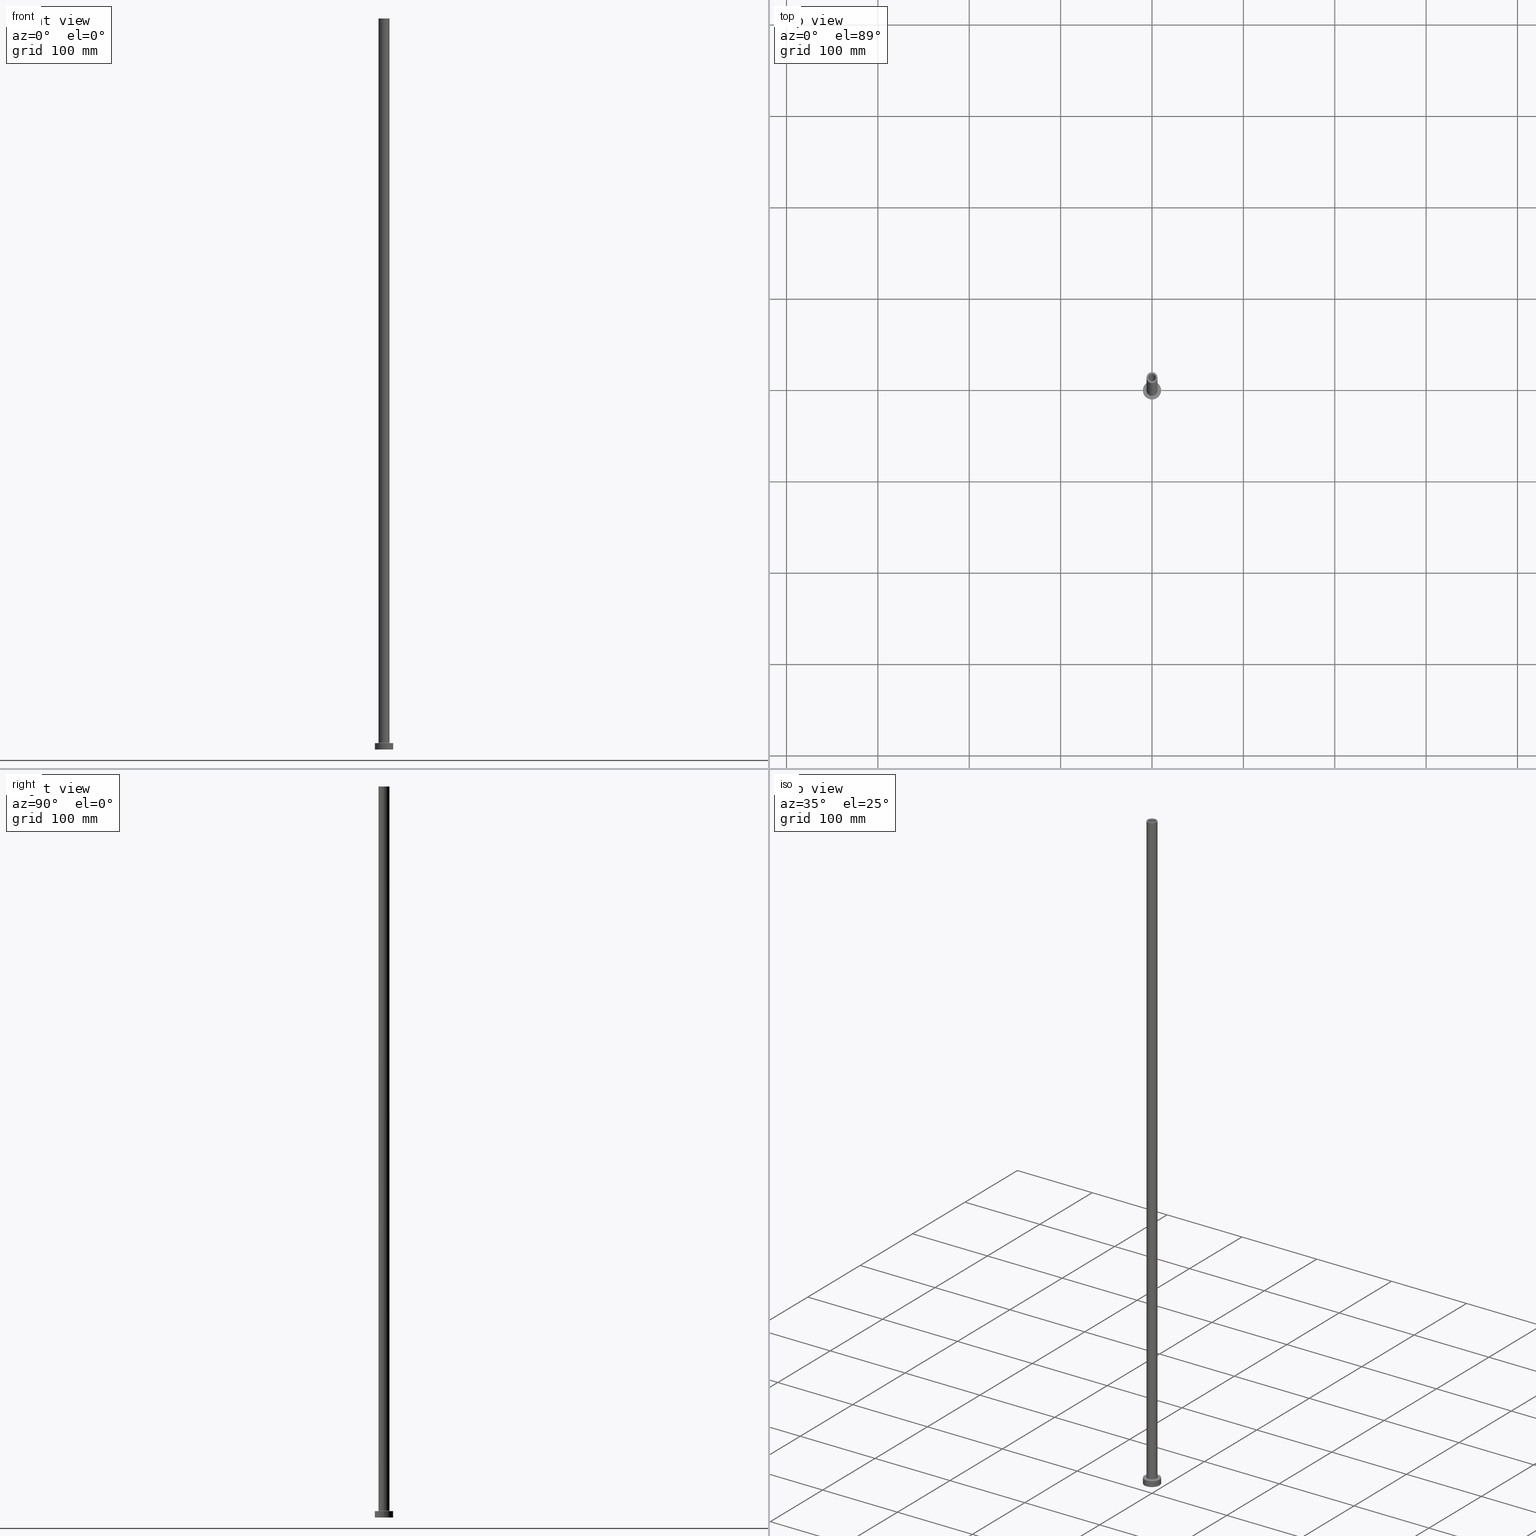
[diagram: canonical four-view strip — front | top / right | iso, engineering-drawing reading convention]
A machine part, canonical four-view strip (front | top / right | iso — engineering-drawing reading convention). The complete STEP part file that produces these views, byte-faithful:
ISO-10303-21;
HEADER;
FILE_DESCRIPTION (( 'STEP AP203' ),
    '1' );
FILE_NAME ('8b2d.STEP',
    '2023-02-13T07:37:52',
    ( '' ),
    ( '' ),
    'SwSTEP 2.0',
    'SolidWorks 2019',
    '' );
FILE_SCHEMA (( 'CONFIG_CONTROL_DESIGN' ));
ENDSEC;

DATA;
#1 = APPROVAL_PERSON_ORGANIZATION ( #98, #102, #64 ) ;
#2 = DIRECTION ( 'NONE',  ( 0.000000000000000000, 0.000000000000000000, 1.000000000000000000 ) ) ;
#3 = DIRECTION ( 'NONE',  ( 1.000000000000000000, 0.000000000000000000, 0.000000000000000000 ) ) ;
#4 = EDGE_CURVE ( 'NONE', #404, #327, #367, .T. ) ;
#5 = AXIS2_PLACEMENT_3D ( 'NONE', #224, #80, #363 ) ;
#6 = PERSON_AND_ORGANIZATION ( #136, #69 ) ;
#7 = EDGE_LOOP ( 'NONE', ( #221, #330, #400, #259 ) ) ;
#8 = CARTESIAN_POINT ( 'NONE',  ( 0.000000000000000000, 0.000000000000000000, 0.000000000000000000 ) ) ;
#9 = EDGE_CURVE ( 'NONE', #327, #11, #153, .T. ) ;
#10 = DIRECTION ( 'NONE',  ( -0.000000000000000000, -0.000000000000000000, -1.000000000000000000 ) ) ;
#11 = VERTEX_POINT ( 'NONE', #268 ) ;
#12 = VECTOR ( 'NONE', #272, 1000.000000000000000 ) ;
#13 = CYLINDRICAL_SURFACE ( 'NONE', #311, 6.000000000000000888 ) ;
#14 = ORIENTED_EDGE ( 'NONE', *, *, #377, .T. ) ;
#15 = EDGE_CURVE ( 'NONE', #359, #256, #348, .T. ) ;
#16 = EDGE_LOOP ( 'NONE', ( #324, #416 ) ) ;
#17 = DIRECTION ( 'NONE',  ( 1.000000000000000000, 0.000000000000000000, 0.000000000000000000 ) ) ;
#18 = APPROVAL_ROLE ( '' ) ;
#19 = DIRECTION ( 'NONE',  ( 1.000000000000000000, 0.000000000000000000, 0.000000000000000000 ) ) ;
#20 = CYLINDRICAL_SURFACE ( 'NONE', #50, 4.099999999999999645 ) ;
#21 = DIRECTION ( 'NONE',  ( 0.000000000000000000, 0.000000000000000000, 1.000000000000000000 ) ) ;
#22 = CARTESIAN_POINT ( 'NONE',  ( 0.000000000000000000, 0.000000000000000000, 800.0000000000000000 ) ) ;
#23 = TOROIDAL_SURFACE ( 'NONE', #138, 6.700000000000001066, 0.6999999999999999556 ) ;
#24 = DIRECTION ( 'NONE',  ( 0.000000000000000000, 0.000000000000000000, -1.000000000000000000 ) ) ;
#25 = CALENDAR_DATE ( 2023, 13, 2 ) ;
#26 = DATE_AND_TIME ( #25, #253 ) ;
#27 = AXIS2_PLACEMENT_3D ( 'NONE', #366, #160, #17 ) ;
#28 = EDGE_LOOP ( 'NONE', ( #35, #121, #334, #273 ) ) ;
#29 = DATE_TIME_ROLE ( 'creation_date' ) ;
#30 = CIRCLE ( 'NONE', #288, 4.250000000000000000 ) ;
#31 = AXIS2_PLACEMENT_3D ( 'NONE', #356, #177, #3 ) ;
#32 = DIRECTION ( 'NONE',  ( -0.000000000000000000, -0.000000000000000000, -1.000000000000000000 ) ) ;
#33 = ADVANCED_FACE ( 'NONE', ( #407 ), #23, .F. ) ;
#34 = AXIS2_PLACEMENT_3D ( 'NONE', #157, #300, #448 ) ;
#35 = ORIENTED_EDGE ( 'NONE', *, *, #163, .F. ) ;
#36 = APPLICATION_CONTEXT ( 'configuration controlled 3d designs of mechanical parts and assemblies' ) ;
#37 = DIRECTION ( 'NONE',  ( -0.000000000000000000, -0.000000000000000000, -1.000000000000000000 ) ) ;
#38 = LINE ( 'NONE', #277, #151 ) ;
#39 = FACE_BOUND ( 'NONE', #77, .T. ) ;
#40 = FACE_OUTER_BOUND ( 'NONE', #314, .T. ) ;
#41 = CC_DESIGN_PERSON_AND_ORGANIZATION_ASSIGNMENT ( #326, #46, ( #341 ) ) ;
#42 = ORIENTED_EDGE ( 'NONE', *, *, #175, .T. ) ;
#43 = EDGE_CURVE ( 'NONE', #386, #52, #406, .T. ) ;
#44 = PERSON_AND_ORGANIZATION_ROLE ( 'creator' ) ;
#45 = ORIENTED_EDGE ( 'NONE', *, *, #125, .F. ) ;
#46 = PERSON_AND_ORGANIZATION_ROLE ( 'design_owner' ) ;
#47 = EDGE_CURVE ( 'NONE', #290, #299, #305, .T. ) ;
#48 = CARTESIAN_POINT ( 'NONE',  ( 0.000000000000000000, 0.000000000000000000, 800.0000000000000000 ) ) ;
#49 = ORIENTED_EDGE ( 'NONE', *, *, #112, .F. ) ;
#50 = AXIS2_PLACEMENT_3D ( 'NONE', #331, #24, #94 ) ;
#51 = CARTESIAN_POINT ( 'NONE',  ( 0.000000000000000000, 0.000000000000000000, 800.0000000000000000 ) ) ;
#52 = VERTEX_POINT ( 'NONE', #298 ) ;
#53 = AXIS2_PLACEMENT_3D ( 'NONE', #371, #306, #307 ) ;
#54 = LINE ( 'NONE', #376, #12 ) ;
#55 = CIRCLE ( 'NONE', #368, 4.250000000000000000 ) ;
#56 = DIRECTION ( 'NONE',  ( -1.000000000000000000, 0.000000000000000000, 0.000000000000000000 ) ) ;
#57 = VERTEX_POINT ( 'NONE', #369 ) ;
#58 = DIRECTION ( 'NONE',  ( 1.224646799147353207E-16, 1.000000000000000000, -0.000000000000000000 ) ) ;
#59 = CC_DESIGN_DATE_AND_TIME_ASSIGNMENT ( #274, #197, ( #351 ) ) ;
#60 = AXIS2_PLACEMENT_3D ( 'NONE', #352, #142, #285 ) ;
#61 = CARTESIAN_POINT ( 'NONE',  ( -4.250000000000000000, 0.000000000000000000, 767.0208152801712913 ) ) ;
#62 = DIRECTION ( 'NONE',  ( -1.000000000000000000, 0.000000000000000000, 0.000000000000000000 ) ) ;
#63 = CARTESIAN_POINT ( 'NONE',  ( 0.000000000000000000, 0.000000000000000000, 7.700000000000040146 ) ) ;
#64 = APPROVAL_ROLE ( '' ) ;
#65 = CARTESIAN_POINT ( 'NONE',  ( 0.000000000000000000, 0.000000000000000000, 0.000000000000000000 ) ) ;
#66 = PERSON_AND_ORGANIZATION_ROLE ( 'classification_officer' ) ;
#67 = EDGE_LOOP ( 'NONE', ( #152, #154 ) ) ;
#68 = DIRECTION ( 'NONE',  ( 1.000000000000000000, 0.000000000000000000, 0.000000000000000000 ) ) ;
#69 = ORGANIZATION ( 'NEUR�EN�', 'NEUR�EN�', '' ) ;
#70 = EDGE_LOOP ( 'NONE', ( #281, #399, #100, #364 ) ) ;
#71 = DIRECTION ( 'NONE',  ( 1.000000000000000000, 0.000000000000000000, 0.000000000000000000 ) ) ;
#72 = CARTESIAN_POINT ( 'NONE',  ( 0.000000000000000000, 0.000000000000000000, 7.000000000000000000 ) ) ;
#73 = DIRECTION ( 'NONE',  ( 0.000000000000000000, 0.000000000000000000, 1.000000000000000000 ) ) ;
#74 = LINE ( 'NONE', #393, #374 ) ;
#75 = DIRECTION ( 'NONE',  ( 1.000000000000000000, 0.000000000000000000, 0.000000000000000000 ) ) ;
#76 = CALENDAR_DATE ( 2023, 13, 2 ) ;
#77 = EDGE_LOOP ( 'NONE', ( #294, #45 ) ) ;
#78 = ADVANCED_FACE ( 'NONE', ( #323 ), #186, .F. ) ;
#79 = DIRECTION ( 'NONE',  ( 1.000000000000000000, 0.000000000000000000, 0.000000000000000000 ) ) ;
#80 = DIRECTION ( 'NONE',  ( 0.000000000000000000, 0.000000000000000000, 1.000000000000000000 ) ) ;
#81 = VERTEX_POINT ( 'NONE', #89 ) ;
#82 = CYLINDRICAL_SURFACE ( 'NONE', #169, 6.000000000000000888 ) ;
#83 = EDGE_LOOP ( 'NONE', ( #97, #42, #302, #304 ) ) ;
#84 = DIRECTION ( 'NONE',  ( 0.000000000000000000, 0.000000000000000000, 1.000000000000000000 ) ) ;
#85 = ORIENTED_EDGE ( 'NONE', *, *, #200, .F. ) ;
#86 = LINE ( 'NONE', #339, #88 ) ;
#87 = CLOSED_SHELL ( 'NONE', ( #78, #343, #278, #104, #127, #340, #95, #459, #93, #115, #33, #321, #395, #185 ) ) ;
#88 = VECTOR ( 'NONE', #199, 1000.000000000000000 ) ;
#89 = CARTESIAN_POINT ( 'NONE',  ( -6.000000000000000888, 0.000000000000000000, 7.700000000000040146 ) ) ;
#90 = COORDINATED_UNIVERSAL_TIME_OFFSET ( 1, 0, .AHEAD. ) ;
#91 = PRODUCT_DEFINITION_FORMATION_WITH_SPECIFIED_SOURCE ( 'LIBOVOLN�', '', #341, .NOT_KNOWN. ) ;
#92 = FACE_OUTER_BOUND ( 'NONE', #445, .T. ) ;
#93 = ADVANCED_FACE ( 'NONE', ( #192 ), #13, .T. ) ;
#94 = DIRECTION ( 'NONE',  ( -1.000000000000000000, 0.000000000000000000, 0.000000000000000000 ) ) ;
#95 = ADVANCED_FACE ( 'NONE', ( #447, #229 ), #195, .T. ) ;
#96 =( NAMED_UNIT ( * ) SI_UNIT ( $, .STERADIAN. ) SOLID_ANGLE_UNIT ( ) );
#97 = ORIENTED_EDGE ( 'NONE', *, *, #47, .F. ) ;
#98 = PERSON_AND_ORGANIZATION ( #136, #69 ) ;
#99 = AXIS2_PLACEMENT_3D ( 'NONE', #106, #73, #355 ) ;
#100 = ORIENTED_EDGE ( 'NONE', *, *, #425, .F. ) ;
#101 = CARTESIAN_POINT ( 'NONE',  ( 0.000000000000000000, 0.000000000000000000, 7.700000000000040146 ) ) ;
#102 = APPROVAL ( #309, 'NEUR�EN�' ) ;
#103 = DIRECTION ( 'NONE',  ( -1.000000000000000000, 0.000000000000000000, 0.000000000000000000 ) ) ;
#104 = ADVANCED_FACE ( 'NONE', ( #402 ), #82, .T. ) ;
#105 = ORIENTED_EDGE ( 'NONE', *, *, #439, .F. ) ;
#106 = CARTESIAN_POINT ( 'NONE',  ( 0.000000000000000000, 0.000000000000000000, 800.0000000000000000 ) ) ;
#107 = LINE ( 'NONE', #213, #358 ) ;
#108 = CARTESIAN_POINT ( 'NONE',  ( 0.000000000000000000, 0.000000000000000000, 7.000000000000000000 ) ) ;
#109 = CARTESIAN_POINT ( 'NONE',  ( 0.000000000000000000, 0.000000000000000000, 0.000000000000000000 ) ) ;
#110 = APPROVAL_PERSON_ORGANIZATION ( #6, #133, #437 ) ;
#111 = ORIENTED_EDGE ( 'NONE', *, *, #255, .T. ) ;
#112 = EDGE_CURVE ( 'NONE', #327, #404, #55, .T. ) ;
#113 = DIRECTION ( 'NONE',  ( 0.000000000000000000, 0.000000000000000000, 1.000000000000000000 ) ) ;
#114 = ORIENTED_EDGE ( 'NONE', *, *, #175, .F. ) ;
#115 = ADVANCED_FACE ( 'NONE', ( #190, #92 ), #373, .T. ) ;
#116 = DESIGN_CONTEXT ( 'detailed design', #394, 'design' ) ;
#117 = ORIENTED_EDGE ( 'NONE', *, *, #4, .F. ) ;
#118 = ORIENTED_EDGE ( 'NONE', *, *, #47, .T. ) ;
#119 = CIRCLE ( 'NONE', #337, 6.700000000000001066 ) ;
#120 = EDGE_LOOP ( 'NONE', ( #180, #329, #265, #328 ) ) ;
#121 = ORIENTED_EDGE ( 'NONE', *, *, #4, .T. ) ;
#122 = CARTESIAN_POINT ( 'NONE',  ( -6.700000000000001066, 8.205133554287267548E-16, 7.700000000000040146 ) ) ;
#123 = EDGE_CURVE ( 'NONE', #81, #386, #252, .T. ) ;
#124 = DIRECTION ( 'NONE',  ( -0.000000000000000000, -0.000000000000000000, -1.000000000000000000 ) ) ;
#125 = EDGE_CURVE ( 'NONE', #275, #11, #30, .T. ) ;
#126 = DIRECTION ( 'NONE',  ( 0.000000000000000000, 0.000000000000000000, 1.000000000000000000 ) ) ;
#127 = ADVANCED_FACE ( 'NONE', ( #230 ), #162, .T. ) ;
#128 = COORDINATED_UNIVERSAL_TIME_OFFSET ( 1, 0, .AHEAD. ) ;
#129 = CALENDAR_DATE ( 2023, 13, 2 ) ;
#130 = DIRECTION ( 'NONE',  ( 1.000000000000000000, 0.000000000000000000, -0.000000000000000000 ) ) ;
#131 = ORIENTED_EDGE ( 'NONE', *, *, #353, .T. ) ;
#132 = AXIS2_PLACEMENT_3D ( 'NONE', #141, #144, #103 ) ;
#133 = APPROVAL ( #257, 'NEUR�EN�' ) ;
#134 = EDGE_LOOP ( 'NONE', ( #193, #262 ) ) ;
#135 = CARTESIAN_POINT ( 'NONE',  ( 6.000000000000000888, 7.347880794884120722E-16, 800.0000000000000000 ) ) ;
#136 = PERSON ( 'NEUR�EN�', 'NEUR�EN�', 'NEUR�EN�', ('NEUR�EN�'), ('NEUR�EN�'), ('NEUR�EN�') ) ;
#137 = VERTEX_POINT ( 'NONE', #234 ) ;
#138 = AXIS2_PLACEMENT_3D ( 'NONE', #444, #84, #264 ) ;
#139 = FACE_OUTER_BOUND ( 'NONE', #361, .T. ) ;
#140 = CARTESIAN_POINT ( 'NONE',  ( -10.00000000000000000, 0.000000000000000000, 7.000000000000000000 ) ) ;
#141 = CARTESIAN_POINT ( 'NONE',  ( 0.000000000000000000, 0.000000000000000000, 767.0208152801712913 ) ) ;
#142 = DIRECTION ( 'NONE',  ( 0.000000000000000000, -1.000000000000000000, 0.000000000000000000 ) ) ;
#143 = CIRCLE ( 'NONE', #375, 4.099999999999999645 ) ;
#144 = DIRECTION ( 'NONE',  ( 0.000000000000000000, 0.000000000000000000, -1.000000000000000000 ) ) ;
#145 = CARTESIAN_POINT ( 'NONE',  ( 0.000000000000000000, 0.000000000000000000, 0.000000000000000000 ) ) ;
#146 = AXIS2_PLACEMENT_3D ( 'NONE', #220, #372, #438 ) ;
#147 = APPLICATION_PROTOCOL_DEFINITION ( 'international standard', 'config_control_design', 1994, #36 ) ;
#148 = ORIENTED_EDGE ( 'NONE', *, *, #295, .T. ) ;
#149 = AXIS2_PLACEMENT_3D ( 'NONE', #250, #391, #427 ) ;
#150 = CARTESIAN_POINT ( 'NONE',  ( 0.000000000000000000, 0.000000000000000000, 7.000000000000000000 ) ) ;
#151 = VECTOR ( 'NONE', #421, 1000.000000000000000 ) ;
#152 = ORIENTED_EDGE ( 'NONE', *, *, #425, .T. ) ;
#153 = LINE ( 'NONE', #61, #225 ) ;
#154 = ORIENTED_EDGE ( 'NONE', *, *, #43, .T. ) ;
#155 = DIRECTION ( 'NONE',  ( 0.000000000000000000, 0.000000000000000000, -1.000000000000000000 ) ) ;
#156 = ORIENTED_EDGE ( 'NONE', *, *, #112, .T. ) ;
#157 = CARTESIAN_POINT ( 'NONE',  ( 0.000000000000000000, 0.000000000000000000, 755.0000000000000000 ) ) ;
#158 = DATE_AND_TIME ( #231, #276 ) ;
#159 = DIRECTION ( 'NONE',  ( 0.000000000000000000, 0.000000000000000000, -1.000000000000000000 ) ) ;
#160 = DIRECTION ( 'NONE',  ( 0.000000000000000000, 0.000000000000000000, 1.000000000000000000 ) ) ;
#161 = ORIENTED_EDGE ( 'NONE', *, *, #295, .F. ) ;
#162 = CYLINDRICAL_SURFACE ( 'NONE', #53, 10.00000000000000000 ) ;
#163 = EDGE_CURVE ( 'NONE', #404, #275, #86, .T. ) ;
#164 = CARTESIAN_POINT ( 'NONE',  ( 0.000000000000000000, 0.000000000000000000, 0.000000000000000000 ) ) ;
#165 = PERSON_AND_ORGANIZATION ( #136, #69 ) ;
#166 = LOCAL_TIME ( 8, 37, 52.00000000000000000, #238 ) ;
#167 = CIRCLE ( 'NONE', #347, 6.000000000000000888 ) ;
#168 = ORIENTED_EDGE ( 'NONE', *, *, #125, .T. ) ;
#169 = AXIS2_PLACEMENT_3D ( 'NONE', #269, #342, #62 ) ;
#170 = CARTESIAN_POINT ( 'NONE',  ( -6.000000000000000888, 0.000000000000000000, 800.0000000000000000 ) ) ;
#171 = EDGE_CURVE ( 'NONE', #256, #359, #143, .T. ) ;
#172 = FACE_OUTER_BOUND ( 'NONE', #70, .T. ) ;
#173 = CARTESIAN_POINT ( 'NONE',  ( 4.250000000000000000, 5.204748896376250699E-16, 755.0000000000000000 ) ) ;
#174 = FACE_BOUND ( 'NONE', #16, .T. ) ;
#175 = EDGE_CURVE ( 'NONE', #290, #382, #196, .T. ) ;
#176 = DIRECTION ( 'NONE',  ( 0.000000000000000000, 0.000000000000000000, 1.000000000000000000 ) ) ;
#177 = DIRECTION ( 'NONE',  ( 0.000000000000000000, 0.000000000000000000, 1.000000000000000000 ) ) ;
#178 = EDGE_CURVE ( 'NONE', #299, #420, #54, .T. ) ;
#179 = CC_DESIGN_APPROVAL ( #434, ( #351 ) ) ;
#180 = ORIENTED_EDGE ( 'NONE', *, *, #123, .F. ) ;
#181 = COORDINATED_UNIVERSAL_TIME_OFFSET ( 1, 0, .AHEAD. ) ;
#182 = ORIENTED_EDGE ( 'NONE', *, *, #163, .T. ) ;
#183 = LOCAL_TIME ( 8, 37, 52.00000000000000000, #181 ) ;
#184 = UNCERTAINTY_MEASURE_WITH_UNIT (LENGTH_MEASURE( 1.000000000000000082E-05 ), #381, 'distance_accuracy_value', 'NONE');
#185 = ADVANCED_FACE ( 'NONE', ( #451 ), #20, .F. ) ;
#186 = CYLINDRICAL_SURFACE ( 'NONE', #398, 4.099999999999999645 ) ;
#187 = ORIENTED_EDGE ( 'NONE', *, *, #411, .F. ) ;
#188 = ORIENTED_EDGE ( 'NONE', *, *, #200, .T. ) ;
#189 = EDGE_LOOP ( 'NONE', ( #161, #105, #457, #312 ) ) ;
#190 = FACE_BOUND ( 'NONE', #134, .T. ) ;
#191 = APPROVAL_DATE_TIME ( #158, #434 ) ;
#192 = FACE_OUTER_BOUND ( 'NONE', #189, .T. ) ;
#193 = ORIENTED_EDGE ( 'NONE', *, *, #171, .F. ) ;
#194 = AXIS2_PLACEMENT_3D ( 'NONE', #108, #37, #461 ) ;
#195 = PLANE ( 'NONE',  #450 ) ;
#196 = LINE ( 'NONE', #412, #390 ) ;
#197 = DATE_TIME_ROLE ( 'classification_date' ) ;
#198 = EDGE_CURVE ( 'NONE', #81, #137, #167, .T. ) ;
#199 = DIRECTION ( 'NONE',  ( 0.000000000000000000, 0.000000000000000000, -1.000000000000000000 ) ) ;
#200 = EDGE_CURVE ( 'NONE', #420, #382, #429, .T. ) ;
#201 = DIRECTION ( 'NONE',  ( 0.000000000000000000, 0.000000000000000000, 1.000000000000000000 ) ) ;
#202 = APPROVAL_DATE_TIME ( #26, #102 ) ;
#203 = AXIS2_PLACEMENT_3D ( 'NONE', #65, #415, #130 ) ;
#204 = AXIS2_PLACEMENT_3D ( 'NONE', #458, #357, #315 ) ;
#205 = CALENDAR_DATE ( 2023, 13, 2 ) ;
#206 = AXIS2_PLACEMENT_3D ( 'NONE', #261, #258, #19 ) ;
#207 = CARTESIAN_POINT ( 'NONE',  ( 10.00000000000000000, 1.224646799147353256E-15, 7.000000000000000000 ) ) ;
#208 =( GEOMETRIC_REPRESENTATION_CONTEXT ( 3 ) GLOBAL_UNCERTAINTY_ASSIGNED_CONTEXT ( ( #184 ) ) GLOBAL_UNIT_ASSIGNED_CONTEXT ( ( #381, #380, #96 ) ) REPRESENTATION_CONTEXT ( 'NONE', 'WORKASPACE' ) );
#209 = ORIENTED_EDGE ( 'NONE', *, *, #260, .F. ) ;
#210 = CARTESIAN_POINT ( 'NONE',  ( -10.00000000000000000, 0.000000000000000000, 0.000000000000000000 ) ) ;
#211 = EDGE_CURVE ( 'NONE', #397, #57, #233, .T. ) ;
#212 = DIRECTION ( 'NONE',  ( 1.000000000000000000, 0.000000000000000000, 0.000000000000000000 ) ) ;
#213 = CARTESIAN_POINT ( 'NONE',  ( -6.000000000000000888, 0.000000000000000000, 800.0000000000000000 ) ) ;
#214 = LOCAL_TIME ( 8, 37, 52.00000000000000000, #289 ) ;
#215 = AXIS2_PLACEMENT_3D ( 'NONE', #101, #384, #68 ) ;
#216 = PRODUCT_DEFINITION ( 'NEZN�M�', '', #91, #116 ) ;
#217 = APPLICATION_PROTOCOL_DEFINITION ( 'international standard', 'config_control_design', 1994, #394 ) ;
#218 = EDGE_LOOP ( 'NONE', ( #297, #148, #111, #418 ) ) ;
#219 = MECHANICAL_CONTEXT ( 'NONE', #36, 'mechanical' ) ;
#220 = CARTESIAN_POINT ( 'NONE',  ( 0.000000000000000000, 0.000000000000000000, 800.0000000000000000 ) ) ;
#221 = ORIENTED_EDGE ( 'NONE', *, *, #171, .T. ) ;
#222 = CARTESIAN_POINT ( 'NONE',  ( 0.000000000000000000, 0.000000000000000000, 755.0000000000000000 ) ) ;
#223 = ORIENTED_EDGE ( 'NONE', *, *, #439, .T. ) ;
#224 = CARTESIAN_POINT ( 'NONE',  ( 0.000000000000000000, 0.000000000000000000, 7.000000000000000000 ) ) ;
#225 = VECTOR ( 'NONE', #155, 1000.000000000000000 ) ;
#226 = VERTEX_POINT ( 'NONE', #170 ) ;
#227 = AXIS2_PLACEMENT_3D ( 'NONE', #122, #58, #405 ) ;
#228 = DIRECTION ( 'NONE',  ( 0.000000000000000000, 0.000000000000000000, 1.000000000000000000 ) ) ;
#229 = FACE_OUTER_BOUND ( 'NONE', #442, .T. ) ;
#230 = FACE_OUTER_BOUND ( 'NONE', #83, .T. ) ;
#231 = CALENDAR_DATE ( 2023, 13, 2 ) ;
#232 = CIRCLE ( 'NONE', #31, 6.000000000000000888 ) ;
#233 = CIRCLE ( 'NONE', #34, 4.099999999999999645 ) ;
#234 = CARTESIAN_POINT ( 'NONE',  ( 6.000000000000000888, 7.347880794884120722E-16, 7.700000000000040146 ) ) ;
#235 = MANIFOLD_SOLID_BREP ( 'Odebrat vysunut�m4', #87 ) ;
#236 = DIRECTION ( 'NONE',  ( 1.000000000000000000, 0.000000000000000000, 0.000000000000000000 ) ) ;
#237 = PERSON_AND_ORGANIZATION ( #136, #69 ) ;
#238 = COORDINATED_UNIVERSAL_TIME_OFFSET ( 1, 0, .AHEAD. ) ;
#239 = AXIS2_PLACEMENT_3D ( 'NONE', #109, #2, #71 ) ;
#240 = AXIS2_PLACEMENT_3D ( 'NONE', #145, #287, #75 ) ;
#241 = FACE_OUTER_BOUND ( 'NONE', #423, .T. ) ;
#242 = ORIENTED_EDGE ( 'NONE', *, *, #15, .T. ) ;
#243 = CARTESIAN_POINT ( 'NONE',  ( 4.250000000000000000, 5.204748896376250699E-16, 0.000000000000000000 ) ) ;
#244 = VERTEX_POINT ( 'NONE', #135 ) ;
#245 = EDGE_CURVE ( 'NONE', #11, #275, #292, .T. ) ;
#246 = FACE_OUTER_BOUND ( 'NONE', #28, .T. ) ;
#247 = CARTESIAN_POINT ( 'NONE',  ( -4.099999999999999645, 0.000000000000000000, 755.0000000000000000 ) ) ;
#248 = DIRECTION ( 'NONE',  ( -0.000000000000000000, -0.000000000000000000, -1.000000000000000000 ) ) ;
#249 = FACE_OUTER_BOUND ( 'NONE', #296, .T. ) ;
#250 = CARTESIAN_POINT ( 'NONE',  ( 0.000000000000000000, 0.000000000000000000, 755.0000000000000000 ) ) ;
#251 = DIRECTION ( 'NONE',  ( 0.000000000000000000, 0.000000000000000000, -1.000000000000000000 ) ) ;
#252 = CIRCLE ( 'NONE', #227, 0.7000000000000000666 ) ;
#253 = LOCAL_TIME ( 8, 37, 52.00000000000000000, #128 ) ;
#254 = PERSON_AND_ORGANIZATION ( #136, #69 ) ;
#255 = EDGE_CURVE ( 'NONE', #137, #81, #301, .T. ) ;
#256 = VERTEX_POINT ( 'NONE', #313 ) ;
#257 = APPROVAL_STATUS ( 'not_yet_approved' ) ;
#258 = DIRECTION ( 'NONE',  ( -0.000000000000000000, -0.000000000000000000, -1.000000000000000000 ) ) ;
#259 = ORIENTED_EDGE ( 'NONE', *, *, #377, .F. ) ;
#260 = EDGE_CURVE ( 'NONE', #359, #57, #38, .T. ) ;
#261 = CARTESIAN_POINT ( 'NONE',  ( 0.000000000000000000, 0.000000000000000000, 7.000000000000000000 ) ) ;
#262 = ORIENTED_EDGE ( 'NONE', *, *, #15, .F. ) ;
#263 = APPROVAL_PERSON_ORGANIZATION ( #270, #434, #18 ) ;
#264 = DIRECTION ( 'NONE',  ( 1.000000000000000000, 0.000000000000000000, 0.000000000000000000 ) ) ;
#265 = ORIENTED_EDGE ( 'NONE', *, *, #422, .T. ) ;
#266 = DIRECTION ( 'NONE',  ( 1.000000000000000000, 0.000000000000000000, 0.000000000000000000 ) ) ;
#267 = ADVANCED_BREP_SHAPE_REPRESENTATION ( '8b2d', ( #235, #362 ), #208 ) ;
#268 = CARTESIAN_POINT ( 'NONE',  ( -4.250000000000000000, 0.000000000000000000, 0.000000000000000000 ) ) ;
#269 = CARTESIAN_POINT ( 'NONE',  ( 0.000000000000000000, 0.000000000000000000, 800.0000000000000000 ) ) ;
#270 = PERSON_AND_ORGANIZATION ( #136, #69 ) ;
#271 = DIRECTION ( 'NONE',  ( 0.000000000000000000, 0.000000000000000000, 1.000000000000000000 ) ) ;
#272 = DIRECTION ( 'NONE',  ( -0.000000000000000000, -0.000000000000000000, -1.000000000000000000 ) ) ;
#273 = ORIENTED_EDGE ( 'NONE', *, *, #245, .T. ) ;
#274 = DATE_AND_TIME ( #129, #166 ) ;
#275 = VERTEX_POINT ( 'NONE', #243 ) ;
#276 = LOCAL_TIME ( 8, 37, 52.00000000000000000, #90 ) ;
#277 = CARTESIAN_POINT ( 'NONE',  ( 4.099999999999999645, 5.021051876504147385E-16, 800.0000000000000000 ) ) ;
#278 = ADVANCED_FACE ( 'NONE', ( #172 ), #419, .F. ) ;
#279 = CARTESIAN_POINT ( 'NONE',  ( 6.000000000000000888, 7.347880794884120722E-16, 800.0000000000000000 ) ) ;
#280 = CYLINDRICAL_SURFACE ( 'NONE', #132, 4.250000000000000000 ) ;
#281 = ORIENTED_EDGE ( 'NONE', *, *, #198, .F. ) ;
#282 = DIRECTION ( 'NONE',  ( 0.000000000000000000, 0.000000000000000000, -1.000000000000000000 ) ) ;
#283 = DIRECTION ( 'NONE',  ( 0.000000000000000000, 0.000000000000000000, 1.000000000000000000 ) ) ;
#284 = CARTESIAN_POINT ( 'NONE',  ( 0.000000000000000000, 0.000000000000000000, 767.0208152801712913 ) ) ;
#285 = DIRECTION ( 'NONE',  ( 0.000000000000000000, 0.000000000000000000, -1.000000000000000000 ) ) ;
#286 = PRODUCT_RELATED_PRODUCT_CATEGORY ( 'detail', '', ( #341 ) ) ;
#287 = DIRECTION ( 'NONE',  ( -0.000000000000000000, -0.000000000000000000, -1.000000000000000000 ) ) ;
#288 = AXIS2_PLACEMENT_3D ( 'NONE', #164, #124, #236 ) ;
#289 = COORDINATED_UNIVERSAL_TIME_OFFSET ( 1, 0, .AHEAD. ) ;
#290 = VERTEX_POINT ( 'NONE', #207 ) ;
#291 = CIRCLE ( 'NONE', #239, 10.00000000000000000 ) ;
#292 = CIRCLE ( 'NONE', #240, 4.250000000000000000 ) ;
#293 = DIRECTION ( 'NONE',  ( 1.000000000000000000, 0.000000000000000000, -0.000000000000000000 ) ) ;
#294 = ORIENTED_EDGE ( 'NONE', *, *, #245, .F. ) ;
#295 = EDGE_CURVE ( 'NONE', #244, #137, #350, .T. ) ;
#296 = EDGE_LOOP ( 'NONE', ( #114, #365, #403, #188 ) ) ;
#297 = ORIENTED_EDGE ( 'NONE', *, *, #392, .F. ) ;
#298 = CARTESIAN_POINT ( 'NONE',  ( 6.700000000000001066, 0.000000000000000000, 7.000000000000020428 ) ) ;
#299 = VERTEX_POINT ( 'NONE', #140 ) ;
#300 = DIRECTION ( 'NONE',  ( 0.000000000000000000, 0.000000000000000000, 1.000000000000000000 ) ) ;
#301 = CIRCLE ( 'NONE', #204, 6.000000000000000888 ) ;
#302 = ORIENTED_EDGE ( 'NONE', *, *, #413, .T. ) ;
#303 = CC_DESIGN_PERSON_AND_ORGANIZATION_ASSIGNMENT ( #254, #44, ( #216 ) ) ;
#304 = ORIENTED_EDGE ( 'NONE', *, *, #178, .F. ) ;
#305 = CIRCLE ( 'NONE', #5, 10.00000000000000000 ) ;
#306 = DIRECTION ( 'NONE',  ( -0.000000000000000000, -0.000000000000000000, -1.000000000000000000 ) ) ;
#307 = DIRECTION ( 'NONE',  ( -1.000000000000000000, 0.000000000000000000, 0.000000000000000000 ) ) ;
#308 = CC_DESIGN_SECURITY_CLASSIFICATION ( #351, ( #91 ) ) ;
#309 = APPROVAL_STATUS ( 'not_yet_approved' ) ;
#310 = PERSON_AND_ORGANIZATION_ROLE ( 'creator' ) ;
#311 = AXIS2_PLACEMENT_3D ( 'NONE', #51, #10, #333 ) ;
#312 = ORIENTED_EDGE ( 'NONE', *, *, #198, .T. ) ;
#313 = CARTESIAN_POINT ( 'NONE',  ( -4.099999999999999645, 0.000000000000000000, 800.0000000000000000 ) ) ;
#314 = EDGE_LOOP ( 'NONE', ( #156, #182, #168, #320 ) ) ;
#315 = DIRECTION ( 'NONE',  ( 1.000000000000000000, 0.000000000000000000, 0.000000000000000000 ) ) ;
#316 = PLANE ( 'NONE',  #149 ) ;
#317 = CYLINDRICAL_SURFACE ( 'NONE', #194, 10.00000000000000000 ) ;
#318 = CARTESIAN_POINT ( 'NONE',  ( 0.000000000000000000, 0.000000000000000000, 755.0000000000000000 ) ) ;
#319 = CARTESIAN_POINT ( 'NONE',  ( 10.00000000000000000, 1.224646799147353256E-15, 0.000000000000000000 ) ) ;
#320 = ORIENTED_EDGE ( 'NONE', *, *, #9, .F. ) ;
#321 = ADVANCED_FACE ( 'NONE', ( #246 ), #387, .F. ) ;
#322 = AXIS2_PLACEMENT_3D ( 'NONE', #284, #282, #426 ) ;
#323 = FACE_OUTER_BOUND ( 'NONE', #7, .T. ) ;
#324 = ORIENTED_EDGE ( 'NONE', *, *, #211, .T. ) ;
#325 = AXIS2_PLACEMENT_3D ( 'NONE', #318, #176, #212 ) ;
#326 = PERSON_AND_ORGANIZATION ( #136, #69 ) ;
#327 = VERTEX_POINT ( 'NONE', #430 ) ;
#328 = ORIENTED_EDGE ( 'NONE', *, *, #43, .F. ) ;
#329 = ORIENTED_EDGE ( 'NONE', *, *, #255, .F. ) ;
#330 = ORIENTED_EDGE ( 'NONE', *, *, #260, .T. ) ;
#331 = CARTESIAN_POINT ( 'NONE',  ( 0.000000000000000000, 0.000000000000000000, 800.0000000000000000 ) ) ;
#332 = CC_DESIGN_PERSON_AND_ORGANIZATION_ASSIGNMENT ( #346, #66, ( #351 ) ) ;
#333 = DIRECTION ( 'NONE',  ( -1.000000000000000000, 0.000000000000000000, 0.000000000000000000 ) ) ;
#334 = ORIENTED_EDGE ( 'NONE', *, *, #9, .T. ) ;
#335 = CARTESIAN_POINT ( 'NONE',  ( 0.000000000000000000, 0.000000000000000000, 755.0000000000000000 ) ) ;
#336 = APPROVAL_STATUS ( 'not_yet_approved' ) ;
#337 = AXIS2_PLACEMENT_3D ( 'NONE', #389, #431, #460 ) ;
#338 = DIRECTION ( 'NONE',  ( 1.000000000000000000, 0.000000000000000000, 0.000000000000000000 ) ) ;
#339 = CARTESIAN_POINT ( 'NONE',  ( 4.250000000000000000, 5.204748896376250699E-16, 767.0208152801712913 ) ) ;
#340 = ADVANCED_FACE ( 'NONE', ( #249 ), #317, .T. ) ;
#341 = PRODUCT ( '8b2d', '8b2d', '', ( #219 ) ) ;
#342 = DIRECTION ( 'NONE',  ( -0.000000000000000000, -0.000000000000000000, -1.000000000000000000 ) ) ;
#343 = ADVANCED_FACE ( 'NONE', ( #40 ), #280, .F. ) ;
#344 = DIRECTION ( 'NONE',  ( 1.000000000000000000, 0.000000000000000000, 0.000000000000000000 ) ) ;
#345 = CC_DESIGN_APPROVAL ( #133, ( #216 ) ) ;
#346 = PERSON_AND_ORGANIZATION ( #136, #69 ) ;
#347 = AXIS2_PLACEMENT_3D ( 'NONE', #63, #201, #344 ) ;
#348 = CIRCLE ( 'NONE', #146, 4.099999999999999645 ) ;
#349 = CC_DESIGN_PERSON_AND_ORGANIZATION_ASSIGNMENT ( #237, #310, ( #91 ) ) ;
#350 = LINE ( 'NONE', #279, #396 ) ;
#351 = SECURITY_CLASSIFICATION ( '', '', #453 ) ;
#352 = CARTESIAN_POINT ( 'NONE',  ( 6.700000000000001066, 0.000000000000000000, 7.700000000000040146 ) ) ;
#353 = EDGE_CURVE ( 'NONE', #299, #290, #443, .T. ) ;
#354 = CARTESIAN_POINT ( 'NONE',  ( -6.700000000000001066, 8.205133554287267548E-16, 7.000000000000020428 ) ) ;
#355 = DIRECTION ( 'NONE',  ( 1.000000000000000000, 0.000000000000000000, 0.000000000000000000 ) ) ;
#356 = CARTESIAN_POINT ( 'NONE',  ( 0.000000000000000000, 0.000000000000000000, 800.0000000000000000 ) ) ;
#357 = DIRECTION ( 'NONE',  ( 0.000000000000000000, 0.000000000000000000, 1.000000000000000000 ) ) ;
#358 = VECTOR ( 'NONE', #248, 1000.000000000000000 ) ;
#359 = VERTEX_POINT ( 'NONE', #424 ) ;
#360 = APPROVAL_DATE_TIME ( #435, #133 ) ;
#361 = EDGE_LOOP ( 'NONE', ( #49, #117 ) ) ;
#362 = AXIS2_PLACEMENT_3D ( 'NONE', #8, #113, #79 ) ;
#363 = DIRECTION ( 'NONE',  ( 1.000000000000000000, 0.000000000000000000, 0.000000000000000000 ) ) ;
#364 = ORIENTED_EDGE ( 'NONE', *, *, #422, .F. ) ;
#365 = ORIENTED_EDGE ( 'NONE', *, *, #353, .F. ) ;
#366 = CARTESIAN_POINT ( 'NONE',  ( 0.000000000000000000, 0.000000000000000000, 0.000000000000000000 ) ) ;
#367 = CIRCLE ( 'NONE', #432, 4.250000000000000000 ) ;
#368 = AXIS2_PLACEMENT_3D ( 'NONE', #335, #228, #266 ) ;
#369 = CARTESIAN_POINT ( 'NONE',  ( 4.099999999999999645, 5.021051876504147385E-16, 755.0000000000000000 ) ) ;
#370 = ORIENTED_EDGE ( 'NONE', *, *, #392, .T. ) ;
#371 = CARTESIAN_POINT ( 'NONE',  ( 0.000000000000000000, 0.000000000000000000, 7.000000000000000000 ) ) ;
#372 = DIRECTION ( 'NONE',  ( 0.000000000000000000, 0.000000000000000000, 1.000000000000000000 ) ) ;
#373 = PLANE ( 'NONE',  #433 ) ;
#374 = VECTOR ( 'NONE', #251, 1000.000000000000000 ) ;
#375 = AXIS2_PLACEMENT_3D ( 'NONE', #452, #126, #378 ) ;
#376 = CARTESIAN_POINT ( 'NONE',  ( -10.00000000000000000, 0.000000000000000000, 7.000000000000000000 ) ) ;
#377 = EDGE_CURVE ( 'NONE', #256, #397, #74, .T. ) ;
#378 = DIRECTION ( 'NONE',  ( 1.000000000000000000, 0.000000000000000000, 0.000000000000000000 ) ) ;
#379 = PERSON_AND_ORGANIZATION_ROLE ( 'design_supplier' ) ;
#380 =( NAMED_UNIT ( * ) PLANE_ANGLE_UNIT ( ) SI_UNIT ( $, .RADIAN. ) );
#381 =( LENGTH_UNIT ( ) NAMED_UNIT ( * ) SI_UNIT ( .MILLI., .METRE. ) );
#382 = VERTEX_POINT ( 'NONE', #319 ) ;
#383 = CC_DESIGN_DATE_AND_TIME_ASSIGNMENT ( #414, #29, ( #216 ) ) ;
#384 = DIRECTION ( 'NONE',  ( 0.000000000000000000, 0.000000000000000000, 1.000000000000000000 ) ) ;
#385 = EDGE_CURVE ( 'NONE', #226, #81, #107, .T. ) ;
#386 = VERTEX_POINT ( 'NONE', #354 ) ;
#387 = CYLINDRICAL_SURFACE ( 'NONE', #322, 4.250000000000000000 ) ;
#388 = AXIS2_PLACEMENT_3D ( 'NONE', #72, #283, #428 ) ;
#389 = CARTESIAN_POINT ( 'NONE',  ( 0.000000000000000000, 0.000000000000000000, 7.000000000000000000 ) ) ;
#390 = VECTOR ( 'NONE', #408, 1000.000000000000000 ) ;
#391 = DIRECTION ( 'NONE',  ( 0.000000000000000000, 0.000000000000000000, 1.000000000000000000 ) ) ;
#392 = EDGE_CURVE ( 'NONE', #244, #226, #232, .T. ) ;
#393 = CARTESIAN_POINT ( 'NONE',  ( -4.099999999999999645, 0.000000000000000000, 800.0000000000000000 ) ) ;
#394 = APPLICATION_CONTEXT ( 'configuration controlled 3d designs of mechanical parts and assemblies' ) ;
#395 = ADVANCED_FACE ( 'NONE', ( #174, #139 ), #316, .F. ) ;
#396 = VECTOR ( 'NONE', #32, 1000.000000000000000 ) ;
#397 = VERTEX_POINT ( 'NONE', #247 ) ;
#398 = AXIS2_PLACEMENT_3D ( 'NONE', #48, #159, #56 ) ;
#399 = ORIENTED_EDGE ( 'NONE', *, *, #123, .T. ) ;
#400 = ORIENTED_EDGE ( 'NONE', *, *, #211, .F. ) ;
#401 = CIRCLE ( 'NONE', #60, 0.7000000000000000666 ) ;
#402 = FACE_OUTER_BOUND ( 'NONE', #218, .T. ) ;
#403 = ORIENTED_EDGE ( 'NONE', *, *, #178, .T. ) ;
#404 = VERTEX_POINT ( 'NONE', #173 ) ;
#405 = DIRECTION ( 'NONE',  ( -1.000000000000000000, 1.224646799147353454E-16, 0.000000000000000000 ) ) ;
#406 = CIRCLE ( 'NONE', #206, 6.700000000000001066 ) ;
#407 = FACE_OUTER_BOUND ( 'NONE', #120, .T. ) ;
#408 = DIRECTION ( 'NONE',  ( -0.000000000000000000, -0.000000000000000000, -1.000000000000000000 ) ) ;
#409 = DIRECTION ( 'NONE',  ( 1.000000000000000000, 0.000000000000000000, -0.000000000000000000 ) ) ;
#410 = CIRCLE ( 'NONE', #325, 4.099999999999999645 ) ;
#411 = EDGE_CURVE ( 'NONE', #57, #397, #410, .T. ) ;
#412 = CARTESIAN_POINT ( 'NONE',  ( 10.00000000000000000, 1.224646799147353256E-15, 7.000000000000000000 ) ) ;
#413 = EDGE_CURVE ( 'NONE', #382, #420, #291, .T. ) ;
#414 = DATE_AND_TIME ( #205, #183 ) ;
#415 = DIRECTION ( 'NONE',  ( 0.000000000000000000, 0.000000000000000000, 1.000000000000000000 ) ) ;
#416 = ORIENTED_EDGE ( 'NONE', *, *, #411, .T. ) ;
#417 = CC_DESIGN_PERSON_AND_ORGANIZATION_ASSIGNMENT ( #165, #379, ( #91 ) ) ;
#418 = ORIENTED_EDGE ( 'NONE', *, *, #385, .F. ) ;
#419 = TOROIDAL_SURFACE ( 'NONE', #215, 6.700000000000001066, 0.6999999999999999556 ) ;
#420 = VERTEX_POINT ( 'NONE', #210 ) ;
#421 = DIRECTION ( 'NONE',  ( 0.000000000000000000, 0.000000000000000000, -1.000000000000000000 ) ) ;
#422 = EDGE_CURVE ( 'NONE', #137, #52, #401, .T. ) ;
#423 = EDGE_LOOP ( 'NONE', ( #85, #456 ) ) ;
#424 = CARTESIAN_POINT ( 'NONE',  ( 4.099999999999999645, 5.021051876504147385E-16, 800.0000000000000000 ) ) ;
#425 = EDGE_CURVE ( 'NONE', #52, #386, #119, .T. ) ;
#426 = DIRECTION ( 'NONE',  ( -1.000000000000000000, 0.000000000000000000, 0.000000000000000000 ) ) ;
#427 = DIRECTION ( 'NONE',  ( 1.000000000000000000, 0.000000000000000000, -0.000000000000000000 ) ) ;
#428 = DIRECTION ( 'NONE',  ( 1.000000000000000000, 0.000000000000000000, 0.000000000000000000 ) ) ;
#429 = CIRCLE ( 'NONE', #27, 10.00000000000000000 ) ;
#430 = CARTESIAN_POINT ( 'NONE',  ( -4.250000000000000000, 0.000000000000000000, 755.0000000000000000 ) ) ;
#431 = DIRECTION ( 'NONE',  ( -0.000000000000000000, -0.000000000000000000, -1.000000000000000000 ) ) ;
#432 = AXIS2_PLACEMENT_3D ( 'NONE', #222, #21, #338 ) ;
#433 = AXIS2_PLACEMENT_3D ( 'NONE', #22, #271, #409 ) ;
#434 = APPROVAL ( #336, 'NEUR�EN�' ) ;
#435 = DATE_AND_TIME ( #76, #214 ) ;
#436 = CIRCLE ( 'NONE', #99, 6.000000000000000888 ) ;
#437 = APPROVAL_ROLE ( '' ) ;
#438 = DIRECTION ( 'NONE',  ( 1.000000000000000000, 0.000000000000000000, 0.000000000000000000 ) ) ;
#439 = EDGE_CURVE ( 'NONE', #226, #244, #436, .T. ) ;
#440 = EDGE_LOOP ( 'NONE', ( #209, #242, #14, #187 ) ) ;
#441 = DIRECTION ( 'NONE',  ( 0.000000000000000000, 0.000000000000000000, 1.000000000000000000 ) ) ;
#442 = EDGE_LOOP ( 'NONE', ( #131, #118 ) ) ;
#443 = CIRCLE ( 'NONE', #388, 10.00000000000000000 ) ;
#444 = CARTESIAN_POINT ( 'NONE',  ( 0.000000000000000000, 0.000000000000000000, 7.700000000000040146 ) ) ;
#445 = EDGE_LOOP ( 'NONE', ( #223, #370 ) ) ;
#446 = SHAPE_DEFINITION_REPRESENTATION ( #449, #267 ) ;
#447 = FACE_BOUND ( 'NONE', #67, .T. ) ;
#448 = DIRECTION ( 'NONE',  ( 1.000000000000000000, 0.000000000000000000, 0.000000000000000000 ) ) ;
#449 = PRODUCT_DEFINITION_SHAPE ( 'NONE', 'NONE',  #216 ) ;
#450 = AXIS2_PLACEMENT_3D ( 'NONE', #150, #441, #293 ) ;
#451 = FACE_OUTER_BOUND ( 'NONE', #440, .T. ) ;
#452 = CARTESIAN_POINT ( 'NONE',  ( 0.000000000000000000, 0.000000000000000000, 800.0000000000000000 ) ) ;
#453 = SECURITY_CLASSIFICATION_LEVEL ( 'unclassified' ) ;
#454 = PLANE ( 'NONE',  #203 ) ;
#455 = CC_DESIGN_APPROVAL ( #102, ( #91 ) ) ;
#456 = ORIENTED_EDGE ( 'NONE', *, *, #413, .F. ) ;
#457 = ORIENTED_EDGE ( 'NONE', *, *, #385, .T. ) ;
#458 = CARTESIAN_POINT ( 'NONE',  ( 0.000000000000000000, 0.000000000000000000, 7.700000000000040146 ) ) ;
#459 = ADVANCED_FACE ( 'NONE', ( #39, #241 ), #454, .F. ) ;
#460 = DIRECTION ( 'NONE',  ( 1.000000000000000000, 0.000000000000000000, 0.000000000000000000 ) ) ;
#461 = DIRECTION ( 'NONE',  ( -1.000000000000000000, 0.000000000000000000, 0.000000000000000000 ) ) ;
ENDSEC;
END-ISO-10303-21;
